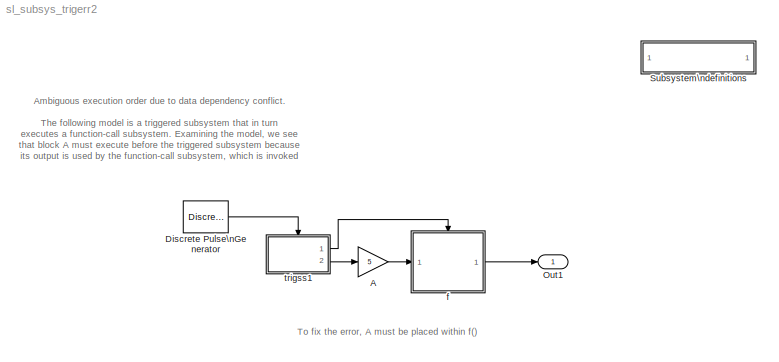
MODEL sl_subsys_trigerr2
KIND model
BLOCK [SubSystem]  Subsystem\ndefinitions
  MaskDisplay = disp('Subsystem\\ndefinitions')\n\n
  MaskIconFrame = on
  MaskIconOpaque = on
  MaskIconRotate = none
  MaskIconUnits = autoscale
  MinAlgLoopOccurrences = off
  OpenFcn = helpview([matlabroot,'/toolbox/simulink/simdemos/sl_subsys_definitions.html']);
  Ports = []
  PropExecContextAcrossSSBoundary = on
  RTWSystemCode = Auto
  TreatAsAtomicUnit = off
BLOCK [Gain] A
  Gain = 5
BLOCK [DiscretePulseGenerator] Discrete Pulse\nGenerator
  Ports = [0, 1]
BLOCK [Outport] Out1
  IconDisplay = Port number
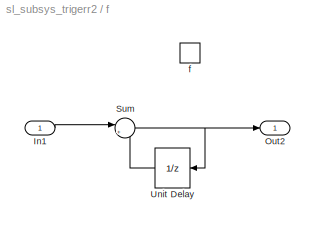
BLOCK [SubSystem] f
  MinAlgLoopOccurrences = off
  Ports = [1, 1, 0, 1]
  PropExecContextAcrossSSBoundary = on
  RTWSystemCode = Auto
  TreatAsAtomicUnit = on
BLOCK [Inport] f/In1
  IconDisplay = Port number
  LatchInput = off
  Port = 1
BLOCK [Outport] f/Out2
  IconDisplay = Port number
BLOCK [Sum] f/Sum
  IconShape = round
  Inputs = |++
  Ports = [2, 1]
BLOCK [UnitDelay] f/Unit Delay
  SampleTime = -1
BLOCK [TriggerPort] f/f
  Ports = []
  TriggerType = function-call
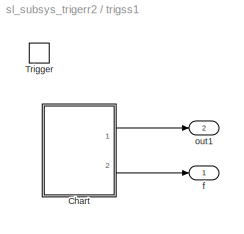
BLOCK [SubSystem] trigss1
  MinAlgLoopOccurrences = off
  Ports = [0, 2, 0, 1]
  PropExecContextAcrossSSBoundary = on
  RTWSystemCode = Auto
  TreatAsAtomicUnit = on
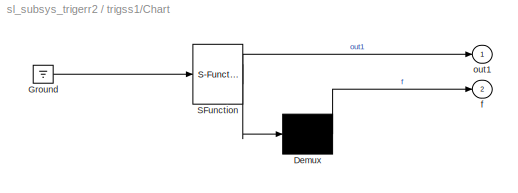
BLOCK [SubSystem] trigss1/Chart
  MaskDescription = Stateflow diagram
  MaskDisplay = plot(sf('Private','sfblk','xIcon'),sf('Private','sfblk','yIcon'));text(0.5,0,sf('Private', 'sfblk', 'tIcon'),'HorizontalAl','Center','VerticalAl','Bottom');
  MaskIconFrame = off
  MaskIconOpaque = off
  MaskIconRotate = none
  MaskIconUnits = autoscale
  MaskSelfModifiable = on
  MaskType = Stateflow
  MinAlgLoopOccurrences = off
  Ports = [0, 2]
  PropExecContextAcrossSSBoundary = on
  RTWSystemCode = Auto
  TreatAsAtomicUnit = off
BLOCK [Demux] trigss1/Chart/ Demux 
  Outputs = 1
  Ports = [1, 1]
BLOCK [Ground] trigss1/Chart/ Ground 
BLOCK [S-Function] trigss1/Chart/ SFunction 
  FunctionName = sf_sfun
  PortCounts = [1 2]
  Ports = [1, 2]
  Tag = Stateflow S-Function sl_subsys_trigerr2 1
BLOCK [Outport] trigss1/Chart/f
  IconDisplay = Port number
  Port = 2
BLOCK [Outport] trigss1/Chart/out1
  IconDisplay = Port number
BLOCK [TriggerPort] trigss1/Trigger
  Ports = []
BLOCK [Outport] trigss1/f
  IconDisplay = Port number
BLOCK [Outport] trigss1/out1
  IconDisplay = Port number
  Port = 2
ANNOTATION (root): Ambiguous execution order due to data dependency conflict.\n\nThe following model is a triggered subsystem that in turn\nexecutes a function-call subsystem. Examining the model, we see \nthat block A must execute before the triggered subsystem because \nits output is used by the function-call subsystem, which is invoked \nby the triggered subsystem. However, block A must be executed after \nthe tr...<+87ch>
ANNOTATION (root): To fix the error, A must be placed within f()
LINE A:1 -> f:1
LINE Discrete Pulse\nGenerator:1 -> trigss1:trigger
LINE f/In1:1 -> f/Sum:1
NET f/Sum:1 -> f/Out2:1, f/Unit Delay:1
LINE f/Unit Delay:1 -> f/Sum:2
LINE f:1 -> Out1:1
LINE trigss1/Chart/ Demux :1 -> trigss1/Chart/f:1
LINE trigss1/Chart/ Ground :1 -> trigss1/Chart/ SFunction :1
LINE trigss1/Chart/ SFunction :1 -> trigss1/Chart/ Demux :1
LINE trigss1/Chart/ SFunction :2 -> trigss1/Chart/out1:1
LINE trigss1/Chart:1 -> trigss1/out1:1
LINE trigss1/Chart:2 -> trigss1/f:1
LINE trigss1:1 -> f:trigger
LINE trigss1:2 -> A:1
note: NET lines group one-source signal fan-out (src -> all destinations, sorted); 1:1 wires keep LINE
CHART trigss1/Chart states=2 transitions=3
  STATE_LABEL 'one/\\nentry: f;d2=d2+10;'
  STATE_LABEL 'two/\\nentry: f;d1 = d1+5;'
